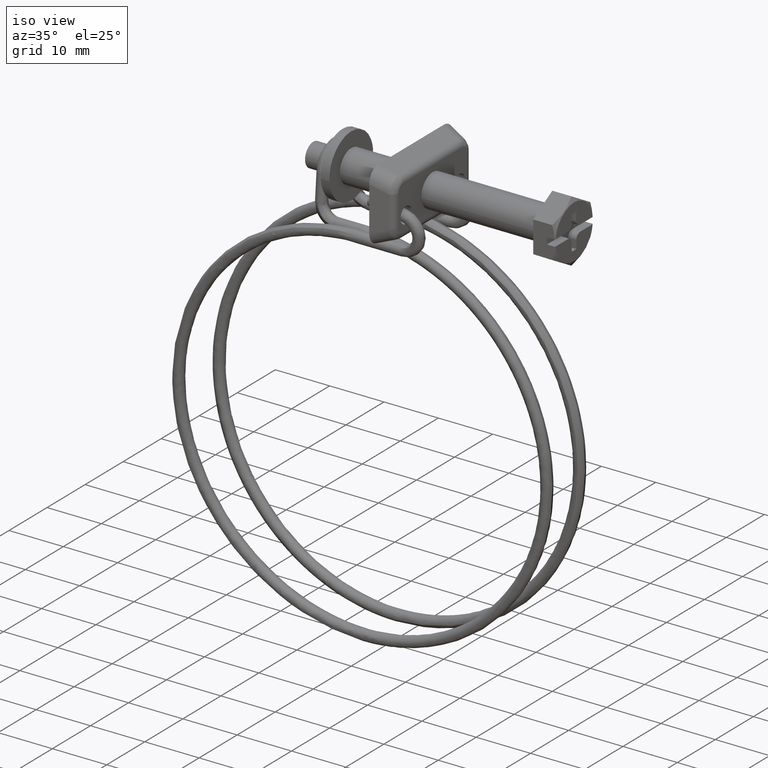
[diagram: clean part render]
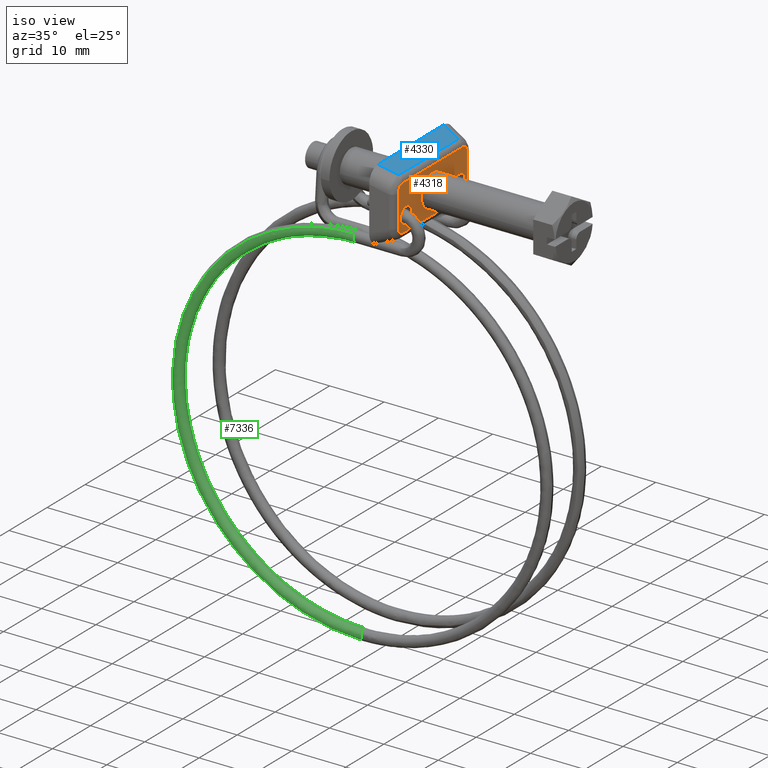
[diagram: same view with three faces highlighted in distinct colors, each labeled with its STEP entity id]
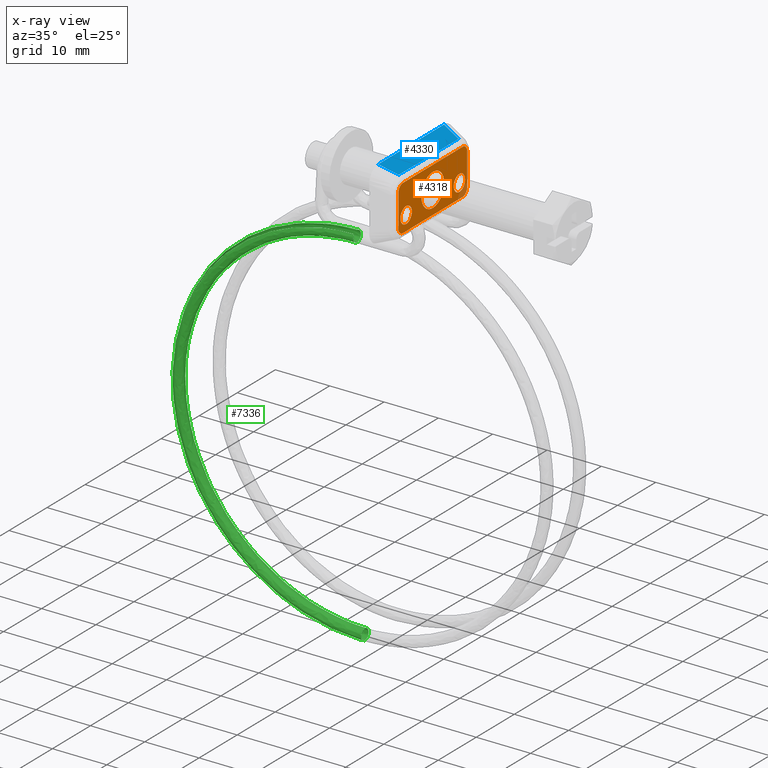
[diagram: x-ray of the same camera — body ghosted, the three highlighted faces saturated]
A machine part, iso view with three faces highlighted in distinct colors.
The next image is the same camera in x-ray (body ghosted, the three faces saturated) — at least one of them is partly hidden behind the body in this view.
Their STEP definitions:

[orange] entity #4318 — the highlighted face is a freeform B-spline surface patch.
#1712=CARTESIAN_POINT('',(-34.700000000000003,-2.979028579089248,0.354102703985006));
#1713=VERTEX_POINT('',#1712);
#1719=CARTESIAN_POINT('',(-34.700000000000003,0.0,-3.0));
#1720=VERTEX_POINT('',#1719);
#1721=CARTESIAN_POINT('',(-34.700000000000010,-2.979028579089249,0.354102703985006));
#1722=CARTESIAN_POINT('',(-34.700000000000010,-3.000000000000000,0.177672358970617));
#1723=CARTESIAN_POINT('',(-34.700000000000003,-3.0,0.0));
#1724=CARTESIAN_POINT('',(-34.700000000000003,-3.0,-3.0));
#1725=CARTESIAN_POINT('',(-34.700000000000003,0.0,-3.0));
#1733=(BOUNDED_CURVE()B_SPLINE_CURVE(2,(#1721,#1722,#1723,#1724,#1725),.UNSPECIFIED.,.F.,.U.)B_SPLINE_CURVE_WITH_KNOTS((3,2,3),(0.229562473513973,0.250000000000000,0.500000000000000),.UNSPECIFIED.)CURVE()GEOMETRIC_REPRESENTATION_ITEM()RATIONAL_B_SPLINE_CURVE((0.956026754184610,0.976055948331689,1.0,0.707106781186548,1.0))REPRESENTATION_ITEM(''));
#1734=EDGE_CURVE('',#1713,#1720,#1733,.T.);
#1736=CARTESIAN_POINT('',(-34.700000000000003,2.994404395260348,-0.183145618690442));
#1737=VERTEX_POINT('',#1736);
#1738=CARTESIAN_POINT('',(-34.700000000000003,0.0,-3.0));
#1739=CARTESIAN_POINT('',(-34.700000000000003,2.822118200554936,-3.0));
#1740=CARTESIAN_POINT('',(-34.700000000000010,2.994404395260348,-0.183145618690442));
#1748=(BOUNDED_CURVE()B_SPLINE_CURVE(2,(#1738,#1739,#1740),.UNSPECIFIED.,.F.,.U.)B_SPLINE_CURVE_WITH_KNOTS((3,3),(0.500000000000000,0.739332962232073),.UNSPECIFIED.)CURVE()GEOMETRIC_REPRESENTATION_ITEM()RATIONAL_B_SPLINE_CURVE((1.0,0.719603993294759,0.976072041651994))REPRESENTATION_ITEM(''));
#1749=EDGE_CURVE('',#1720,#1737,#1748,.T.);
#1823=CARTESIAN_POINT('',(-34.700000000000003,0.0,3.0));
#1824=VERTEX_POINT('',#1823);
#1825=CARTESIAN_POINT('',(-34.700000000000003,2.994404395260348,-0.183145618690442));
#1826=CARTESIAN_POINT('',(-34.699999999999996,3.0,-0.091658289981878));
#1827=CARTESIAN_POINT('',(-34.700000000000003,3.0,0.0));
#1828=CARTESIAN_POINT('',(-34.700000000000003,3.0,3.0));
#1829=CARTESIAN_POINT('',(-34.700000000000003,0.0,3.0));
#1837=(BOUNDED_CURVE()B_SPLINE_CURVE(2,(#1825,#1826,#1827,#1828,#1829),.UNSPECIFIED.,.F.,.U.)B_SPLINE_CURVE_WITH_KNOTS((3,2,3),(0.739332962232072,0.750000000000000,1.0),.UNSPECIFIED.)CURVE()GEOMETRIC_REPRESENTATION_ITEM()RATIONAL_B_SPLINE_CURVE((0.976072041651992,0.987502787891788,1.0,0.707106781186548,1.0))REPRESENTATION_ITEM(''));
#1838=EDGE_CURVE('',#1737,#1824,#1837,.T.);
#1840=CARTESIAN_POINT('',(-34.700000000000003,0.0,3.0));
#1841=CARTESIAN_POINT('',(-34.699999999999996,-2.664523577827566,3.0));
#1842=CARTESIAN_POINT('',(-34.700000000000003,-2.979028579089248,0.354102703985006));
#1850=(BOUNDED_CURVE()B_SPLINE_CURVE(2,(#1840,#1841,#1842),.UNSPECIFIED.,.F.,.U.)B_SPLINE_CURVE_WITH_KNOTS((3,3),(0.0,0.229562473513973),.UNSPECIFIED.)CURVE()GEOMETRIC_REPRESENTATION_ITEM()RATIONAL_B_SPLINE_CURVE((1.0,0.731050832854858,0.956026754184610))REPRESENTATION_ITEM(''));
#1851=EDGE_CURVE('',#1824,#1713,#1850,.T.);
#1902=CARTESIAN_POINT('',(-34.700000000000003,-5.728324125057110,-0.704487291686590));
#1903=VERTEX_POINT('',#1902);
#1909=CARTESIAN_POINT('',(-34.700000000000003,-7.000000000000110,1.140581E-013));
#1910=VERTEX_POINT('',#1909);
#1911=CARTESIAN_POINT('',(-34.700000000000003,-5.728324125057111,-0.704487291686590));
#1912=CARTESIAN_POINT('',(-34.700000000000003,-6.169024939182585,1.140581E-013));
#1913=CARTESIAN_POINT('',(-34.700000000000003,-7.000000000000110,1.140581E-013));
#1921=(BOUNDED_CURVE()B_SPLINE_CURVE(2,(#1911,#1912,#1913),.UNSPECIFIED.,.F.,.U.)B_SPLINE_CURVE_WITH_KNOTS((3,3),(0.840693054651779,1.0),.UNSPECIFIED.)CURVE()GEOMETRIC_REPRESENTATION_ITEM()RATIONAL_B_SPLINE_CURVE((0.864584606796940,0.813360303990483,1.0))REPRESENTATION_ITEM(''));
#1922=EDGE_CURVE('',#1903,#1910,#1921,.T.);
#1924=CARTESIAN_POINT('',(-34.700000000000003,-7.000000000000110,-2.999999999999886));
#1925=VERTEX_POINT('',#1924);
#1926=CARTESIAN_POINT('',(-34.700000000000003,-7.000000000000110,1.140581E-013));
#1927=CARTESIAN_POINT('',(-34.700000000000003,-8.500000000000110,1.140581E-013));
#1928=CARTESIAN_POINT('',(-34.700000000000003,-8.500000000000110,-1.499999999999886));
#1929=CARTESIAN_POINT('',(-34.700000000000003,-8.500000000000110,-2.999999999999886));
#1930=CARTESIAN_POINT('',(-34.700000000000003,-7.000000000000110,-2.999999999999886));
#1938=(BOUNDED_CURVE()B_SPLINE_CURVE(2,(#1926,#1927,#1928,#1929,#1930),.UNSPECIFIED.,.F.,.U.)B_SPLINE_CURVE_WITH_KNOTS((3,2,3),(0.0,0.250000000000000,0.500000000000000),.UNSPECIFIED.)CURVE()GEOMETRIC_REPRESENTATION_ITEM()RATIONAL_B_SPLINE_CURVE((1.0,0.707106781186548,1.0,0.707106781186548,1.0))REPRESENTATION_ITEM(''));
#1939=EDGE_CURVE('',#1910,#1925,#1938,.T.);
#1941=CARTESIAN_POINT('',(-34.700000000000003,-5.502797802386784,-1.591572809620562));
#1942=VERTEX_POINT('',#1941);
#1943=CARTESIAN_POINT('',(-34.700000000000003,-7.000000000000110,-2.999999999999886));
#1944=CARTESIAN_POINT('',(-34.700000000000010,-5.588940900242836,-2.999999999999886));
#1945=CARTESIAN_POINT('',(-34.700000000000003,-5.502797802386784,-1.591572809620561));
#1953=(BOUNDED_CURVE()B_SPLINE_CURVE(2,(#1943,#1944,#1945),.UNSPECIFIED.,.F.,.U.)B_SPLINE_CURVE_WITH_KNOTS((3,3),(0.500000000000000,0.739332962168581),.UNSPECIFIED.)CURVE()GEOMETRIC_REPRESENTATION_ITEM()RATIONAL_B_SPLINE_CURVE((1.0,0.719603993369144,0.976072041515920))REPRESENTATION_ITEM(''));
#1954=EDGE_CURVE('',#1925,#1942,#1953,.T.);
#2041=CARTESIAN_POINT('',(-34.700000000000003,-5.502797802386784,-1.591572809620562));
#2042=CARTESIAN_POINT('',(-34.700000000000003,-5.500000000000112,-1.545829145267052));
#2043=CARTESIAN_POINT('',(-34.700000000000003,-5.500000000000111,-1.499999999999886));
#2044=CARTESIAN_POINT('',(-34.700000000000003,-5.500000000000110,-1.069477414991303));
#2045=CARTESIAN_POINT('',(-34.699999999999996,-5.728324125057110,-0.704487291686590));
#2053=(BOUNDED_CURVE()B_SPLINE_CURVE(2,(#2041,#2042,#2043,#2044,#2045),.UNSPECIFIED.,.F.,.U.)B_SPLINE_CURVE_WITH_KNOTS((3,2,3),(0.739332962168582,0.750000000000000,0.840693054651778),.UNSPECIFIED.)CURVE()GEOMETRIC_REPRESENTATION_ITEM()RATIONAL_B_SPLINE_CURVE((0.976072041515921,0.987502787817404,1.0,0.893746477196066,0.864584606796941))REPRESENTATION_ITEM(''));
#2054=EDGE_CURVE('',#1942,#1903,#2053,.T.);
#2105=CARTESIAN_POINT('',(-34.700000000000003,5.910109113903810,-2.530600725986105));
#2106=VERTEX_POINT('',#2105);
#2112=CARTESIAN_POINT('',(-34.700000000000003,6.999999999999830,-2.999999999999886));
#2113=VERTEX_POINT('',#2112);
#2114=CARTESIAN_POINT('',(-34.700000000000003,5.910109113903810,-2.530600725986105));
#2115=CARTESIAN_POINT('',(-34.700000000000003,6.353973026105231,-2.999999999999886));
#2116=CARTESIAN_POINT('',(-34.700000000000003,6.999999999999830,-2.999999999999886));
#2124=(BOUNDED_CURVE()B_SPLINE_CURVE(2,(#2114,#2115,#2116),.UNSPECIFIED.,.F.,.U.)B_SPLINE_CURVE_WITH_KNOTS((3,3),(0.370781899629533,0.500000000000000),.UNSPECIFIED.)CURVE()GEOMETRIC_REPRESENTATION_ITEM()RATIONAL_B_SPLINE_CURVE((0.853720151064794,0.848611578614136,1.0))REPRESENTATION_ITEM(''));
#2125=EDGE_CURVE('',#2106,#2113,#2124,.T.);
#2127=CARTESIAN_POINT('',(-34.700000000000003,6.999999999999830,1.140581E-013));
#2128=VERTEX_POINT('',#2127);
#2129=CARTESIAN_POINT('',(-34.700000000000003,6.999999999999830,-2.999999999999886));
#2130=CARTESIAN_POINT('',(-34.700000000000003,8.499999999999831,-2.999999999999886));
#2131=CARTESIAN_POINT('',(-34.700000000000003,8.499999999999831,-1.499999999999886));
#2132=CARTESIAN_POINT('',(-34.700000000000003,8.499999999999831,1.140581E-013));
#2133=CARTESIAN_POINT('',(-34.700000000000003,6.999999999999830,1.140581E-013));
#2141=(BOUNDED_CURVE()B_SPLINE_CURVE(2,(#2129,#2130,#2131,#2132,#2133),.UNSPECIFIED.,.F.,.U.)B_SPLINE_CURVE_WITH_KNOTS((3,2,3),(0.500000000000000,0.750000000000000,1.0),.UNSPECIFIED.)CURVE()GEOMETRIC_REPRESENTATION_ITEM()RATIONAL_B_SPLINE_CURVE((1.0,0.707106781186548,1.0,0.707106781186548,1.0))REPRESENTATION_ITEM(''));
#2142=EDGE_CURVE('',#2113,#2128,#2141,.T.);
#2144=CARTESIAN_POINT('',(-34.700000000000003,5.502797802386503,-1.408427190379211));
#2145=VERTEX_POINT('',#2144);
#2146=CARTESIAN_POINT('',(-34.700000000000003,6.999999999999830,1.140581E-013));
#2147=CARTESIAN_POINT('',(-34.699999999999996,5.588940900242551,1.140581E-013));
#2148=CARTESIAN_POINT('',(-34.700000000000003,5.502797802386503,-1.408427190379211));
#2156=(BOUNDED_CURVE()B_SPLINE_CURVE(2,(#2146,#2147,#2148),.UNSPECIFIED.,.F.,.U.)B_SPLINE_CURVE_WITH_KNOTS((3,3),(0.0,0.239332962168582),.UNSPECIFIED.)CURVE()GEOMETRIC_REPRESENTATION_ITEM()RATIONAL_B_SPLINE_CURVE((1.0,0.719603993369143,0.976072041515921))REPRESENTATION_ITEM(''));
#2157=EDGE_CURVE('',#2128,#2145,#2156,.T.);
#2244=CARTESIAN_POINT('',(-34.700000000000003,5.502797802386503,-1.408427190379211));
#2245=CARTESIAN_POINT('',(-34.700000000000003,5.499999999999830,-1.454170854732720));
#2246=CARTESIAN_POINT('',(-34.700000000000003,5.499999999999830,-1.499999999999886));
#2247=CARTESIAN_POINT('',(-34.700000000000003,5.499999999999830,-2.096898154002779));
#2248=CARTESIAN_POINT('',(-34.700000000000003,5.910109113903810,-2.530600725986105));
#2256=(BOUNDED_CURVE()B_SPLINE_CURVE(2,(#2244,#2245,#2246,#2247,#2248),.UNSPECIFIED.,.F.,.U.)B_SPLINE_CURVE_WITH_KNOTS((3,2,3),(0.239332962168582,0.250000000000000,0.370781899629533),.UNSPECIFIED.)CURVE()GEOMETRIC_REPRESENTATION_ITEM()RATIONAL_B_SPLINE_CURVE((0.976072041515921,0.987502787817404,1.0,0.858495202572412,0.853720151064794))REPRESENTATION_ITEM(''));
#2257=EDGE_CURVE('',#2145,#2106,#2256,.T.);
#3251=CARTESIAN_POINT('',(-34.700000000000003,7.837173833659421,-4.168399938202366));
#3252=VERTEX_POINT('',#3251);
#3283=CARTESIAN_POINT('',(-34.700000000000003,9.063068073994790,-2.898235503023255));
#3284=VERTEX_POINT('',#3283);
#3298=CARTESIAN_POINT('',(-34.700000000000003,7.837173833659350,-4.168399938202257));
#3299=CARTESIAN_POINT('',(-34.700000000000003,9.063068073994772,-4.168399938202319));
#3300=CARTESIAN_POINT('',(-34.700000000000003,9.063068073994794,-2.898235503023259));
#3308=(BOUNDED_CURVE()B_SPLINE_CURVE(2,(#3298,#3299,#3300),.UNSPECIFIED.,.F.,.U.)CURVE()GEOMETRIC_REPRESENTATION_ITEM()QUASI_UNIFORM_CURVE()RATIONAL_B_SPLINE_CURVE((1.0,0.736600277350782,1.0))REPRESENTATION_ITEM(''));
#3309=EDGE_CURVE('',#3252,#3284,#3308,.T.);
#3330=CARTESIAN_POINT('',(-34.700000000000003,9.063068073994790,2.898234503023515));
#3331=VERTEX_POINT('',#3330);
#3345=CARTESIAN_POINT('',(-34.700000000000003,9.063068073994790,-2.898235503023255));
#3346=CARTESIAN_POINT('',(-34.700000000000003,9.063068073994790,2.898234503023515));
#3347=QUASI_UNIFORM_CURVE('',1,(#3345,#3346),.UNSPECIFIED.,.F.,.U.);
#3348=EDGE_CURVE('',#3284,#3331,#3347,.T.);
#3373=CARTESIAN_POINT('',(-34.700000000000003,-7.837173833659261,-4.168399938202345));
#3374=VERTEX_POINT('',#3373);
#3396=CARTESIAN_POINT('',(-34.700000000000003,-7.837173833659261,-4.168399938202345));
#3397=CARTESIAN_POINT('',(-34.700000000000003,7.837173833659421,-4.168399938202366));
#3398=QUASI_UNIFORM_CURVE('',1,(#3396,#3397),.UNSPECIFIED.,.F.,.U.);
#3399=EDGE_CURVE('',#3374,#3252,#3398,.T.);
#3444=CARTESIAN_POINT('',(-34.700000000000003,7.837173833659399,4.168398938202520));
#3445=VERTEX_POINT('',#3444);
#3459=CARTESIAN_POINT('',(-34.700000000000003,9.063068073994794,2.898234503023514));
#3460=CARTESIAN_POINT('',(-34.700000000000003,9.063068073994794,4.168398938202528));
#3461=CARTESIAN_POINT('',(-34.700000000000003,7.837173833659408,4.168398938202532));
#3469=(BOUNDED_CURVE()B_SPLINE_CURVE(2,(#3459,#3460,#3461),.UNSPECIFIED.,.F.,.U.)CURVE()GEOMETRIC_REPRESENTATION_ITEM()QUASI_UNIFORM_CURVE()RATIONAL_B_SPLINE_CURVE((1.0,0.736600277350791,1.0))REPRESENTATION_ITEM(''));
#3470=EDGE_CURVE('',#3331,#3445,#3469,.T.);
#3527=CARTESIAN_POINT('',(-34.700000000000003,-9.063068073994819,-2.898235503023300));
#3528=VERTEX_POINT('',#3527);
#3558=CARTESIAN_POINT('',(-34.700000000000003,-9.063068073994884,-2.898235503023257));
#3559=CARTESIAN_POINT('',(-34.700000000000003,-9.063068073994952,-4.168399938202581));
#3560=CARTESIAN_POINT('',(-34.700000000000003,-7.837173833659266,-4.168399938202352));
#3568=(BOUNDED_CURVE()B_SPLINE_CURVE(2,(#3558,#3559,#3560),.UNSPECIFIED.,.F.,.U.)CURVE()GEOMETRIC_REPRESENTATION_ITEM()QUASI_UNIFORM_CURVE()RATIONAL_B_SPLINE_CURVE((1.0,0.736600277350715,1.0))REPRESENTATION_ITEM(''));
#3569=EDGE_CURVE('',#3528,#3374,#3568,.T.);
#3590=CARTESIAN_POINT('',(-34.700000000000003,-7.837173833659450,4.168398938202480));
#3591=VERTEX_POINT('',#3590);
#3605=CARTESIAN_POINT('',(-34.700000000000003,7.837173833659399,4.168398938202520));
#3606=CARTESIAN_POINT('',(-34.700000000000003,-7.837173833659450,4.168398938202480));
#3607=QUASI_UNIFORM_CURVE('',1,(#3605,#3606),.UNSPECIFIED.,.F.,.U.);
#3608=EDGE_CURVE('',#3445,#3591,#3607,.T.);
#3633=CARTESIAN_POINT('',(-34.700000000000003,-9.063068073994838,2.898234503023610));
#3634=VERTEX_POINT('',#3633);
#3656=CARTESIAN_POINT('',(-34.700000000000003,-9.063068073994838,2.898234503023610));
#3657=CARTESIAN_POINT('',(-34.700000000000003,-9.063068073994819,-2.898235503023300));
#3658=QUASI_UNIFORM_CURVE('',1,(#3656,#3657),.UNSPECIFIED.,.F.,.U.);
#3659=EDGE_CURVE('',#3634,#3528,#3658,.T.);
#3717=CARTESIAN_POINT('',(-34.700000000000003,-7.837173833659446,4.168398938202476));
#3718=CARTESIAN_POINT('',(-34.700000000000003,-9.063068073994696,4.168398938202474));
#3719=CARTESIAN_POINT('',(-34.700000000000003,-9.063068073994831,2.898234503023615));
#3727=(BOUNDED_CURVE()B_SPLINE_CURVE(2,(#3717,#3718,#3719),.UNSPECIFIED.,.F.,.U.)CURVE()GEOMETRIC_REPRESENTATION_ITEM()QUASI_UNIFORM_CURVE()RATIONAL_B_SPLINE_CURVE((1.0,0.736600277350829,1.0))REPRESENTATION_ITEM(''));
#3728=EDGE_CURVE('',#3591,#3634,#3727,.T.);
#4285=CARTESIAN_POINT('',(-34.700000000000003,-9.968468879765345,4.584821917875805));
#4286=CARTESIAN_POINT('',(-34.700000000000003,-9.968468879765345,-4.584822619728491));
#4287=CARTESIAN_POINT('',(-34.700000000000003,9.968469041825584,4.584821917875805));
#4288=CARTESIAN_POINT('',(-34.700000000000003,9.968469041825584,-4.584822619728491));
#4289=B_SPLINE_SURFACE_WITH_KNOTS('',1,1,((#4285,#4287),(#4286,#4288)),.UNSPECIFIED.,.F.,.F.,.U.,(2,2),(2,2),(0.0,9.169644537604295),(0.0,19.936937921590928),.UNSPECIFIED.);
#4290=ORIENTED_EDGE('',*,*,#3399,.T.);
#4291=ORIENTED_EDGE('',*,*,#3309,.T.);
#4292=ORIENTED_EDGE('',*,*,#3348,.T.);
#4293=ORIENTED_EDGE('',*,*,#3470,.T.);
#4294=ORIENTED_EDGE('',*,*,#3608,.T.);
#4295=ORIENTED_EDGE('',*,*,#3728,.T.);
#4296=ORIENTED_EDGE('',*,*,#3659,.T.);
#4297=ORIENTED_EDGE('',*,*,#3569,.T.);
#4298=EDGE_LOOP('',(#4290,#4291,#4292,#4293,#4294,#4295,#4296,#4297));
#4299=FACE_OUTER_BOUND('',#4298,.T.);
#4300=ORIENTED_EDGE('',*,*,#1939,.F.);
#4301=ORIENTED_EDGE('',*,*,#1922,.F.);
#4302=ORIENTED_EDGE('',*,*,#2054,.F.);
#4303=ORIENTED_EDGE('',*,*,#1954,.F.);
#4304=EDGE_LOOP('',(#4300,#4301,#4302,#4303));
#4305=FACE_BOUND('',#4304,.T.);
#4306=ORIENTED_EDGE('',*,*,#2142,.F.);
#4307=ORIENTED_EDGE('',*,*,#2125,.F.);
#4308=ORIENTED_EDGE('',*,*,#2257,.F.);
#4309=ORIENTED_EDGE('',*,*,#2157,.F.);
#4310=EDGE_LOOP('',(#4306,#4307,#4308,#4309));
#4311=FACE_BOUND('',#4310,.T.);
#4312=ORIENTED_EDGE('',*,*,#1749,.F.);
#4313=ORIENTED_EDGE('',*,*,#1734,.F.);
#4314=ORIENTED_EDGE('',*,*,#1851,.F.);
#4315=ORIENTED_EDGE('',*,*,#1838,.F.);
#4316=EDGE_LOOP('',(#4312,#4313,#4314,#4315));
#4317=FACE_BOUND('',#4316,.T.);
#4318=ADVANCED_FACE('',(#4299,#4305,#4311,#4317),#4289,.T.);

[blue] entity #4330 — the highlighted face is a freeform B-spline surface patch.
#3442=CARTESIAN_POINT('',(-35.478652022991000,7.837173833659399,5.291994008621761));
#3443=VERTEX_POINT('',#3442);
#3588=CARTESIAN_POINT('',(-35.478652022990950,-7.837173833659441,5.291994008621720));
#3589=VERTEX_POINT('',#3588);
#3611=CARTESIAN_POINT('',(-35.478652022990950,-7.837173833659441,5.291994008621720));
#3612=CARTESIAN_POINT('',(-35.478652022991000,7.837173833659399,5.291994008621761));
#3613=QUASI_UNIFORM_CURVE('',1,(#3611,#3612),.UNSPECIFIED.,.F.,.U.);
#3614=EDGE_CURVE('',#3589,#3443,#3613,.T.);
#3955=CARTESIAN_POINT('',(-38.700000000000003,-8.642511158470031,6.500000000000110));
#3956=VERTEX_POINT('',#3955);
#3957=CARTESIAN_POINT('',(-38.700000000000003,-8.642511158470031,6.500000000000110));
#3958=CARTESIAN_POINT('',(-35.478652022990950,-7.837173833659441,5.291994008621720));
#3959=QUASI_UNIFORM_CURVE('',1,(#3957,#3958),.UNSPECIFIED.,.F.,.U.);
#3960=EDGE_CURVE('',#3956,#3589,#3959,.T.);
#4082=CARTESIAN_POINT('',(-38.700000000000003,8.642511158470031,6.500000000000110));
#4083=VERTEX_POINT('',#4082);
#4084=CARTESIAN_POINT('',(-35.478652022991000,7.837173833659399,5.291994008621761));
#4085=CARTESIAN_POINT('',(-38.700000000000003,8.642511158470031,6.500000000000110));
#4086=QUASI_UNIFORM_CURVE('',1,(#4084,#4085),.UNSPECIFIED.,.F.,.U.);
#4087=EDGE_CURVE('',#3443,#4083,#4086,.T.);
#4244=CARTESIAN_POINT('',(-38.700000000000003,-8.642511158470031,6.500000000000110));
#4245=CARTESIAN_POINT('',(-38.700000000000003,8.642511158470031,6.500000000000110));
#4246=QUASI_UNIFORM_CURVE('',1,(#4244,#4245),.UNSPECIFIED.,.F.,.U.);
#4247=EDGE_CURVE('',#3956,#4083,#4246,.T.);
#4319=CARTESIAN_POINT('',(-38.860907350114417,-9.505898314218301,6.560339231317746));
#4320=CARTESIAN_POINT('',(-35.317746528101807,-9.505898314218301,5.231654473013151));
#4321=CARTESIAN_POINT('',(-38.860907350114417,9.505898468758446,6.560339231317746));
#4322=CARTESIAN_POINT('',(-35.317746528101807,9.505898468758446,5.231654473013151));
#4323=B_SPLINE_SURFACE_WITH_KNOTS('',1,1,((#4319,#4321),(#4320,#4322)),.UNSPECIFIED.,.F.,.F.,.U.,(2,2),(2,2),(0.0,3.784097223591911),(0.0,19.011796782976749),.UNSPECIFIED.);
#4324=ORIENTED_EDGE('',*,*,#3960,.T.);
#4325=ORIENTED_EDGE('',*,*,#3614,.T.);
#4326=ORIENTED_EDGE('',*,*,#4087,.T.);
#4327=ORIENTED_EDGE('',*,*,#4247,.F.);
#4328=EDGE_LOOP('',(#4324,#4325,#4326,#4327));
#4329=FACE_OUTER_BOUND('',#4328,.T.);
#4330=ADVANCED_FACE('',(#4329),#4323,.T.);

[green] entity #7336 — the highlighted face is a freeform B-spline surface patch.
#4592=CARTESIAN_POINT('',(-31.499999999998799,-6.015277306654103,-6.894924390057638));
#4593=VERTEX_POINT('',#4592);
#4599=CARTESIAN_POINT('',(-31.499999999998799,-6.369948017666440,-6.851799381403104));
#4600=VERTEX_POINT('',#4599);
#4601=CARTESIAN_POINT('',(-31.499999999998799,-6.015277306654103,-6.894924390057638));
#4602=CARTESIAN_POINT('',(-31.499999999998799,-6.129718413403300,-6.859667873983947));
#4603=CARTESIAN_POINT('',(-31.499999999998799,-6.250341688216125,-6.844467170618224));
#4604=CARTESIAN_POINT('',(-31.499999999998799,-6.369948017666440,-6.851799381403104));
#4605=B_SPLINE_CURVE_WITH_KNOTS('',3,(#4601,#4602,#4603,#4604),.UNSPECIFIED.,.F.,.U.,(4,4),(0.942811831421923,1.0),.UNSPECIFIED.);
#4606=EDGE_CURVE('',#4593,#4600,#4605,.T.);
#4608=CARTESIAN_POINT('',(-31.499999999998799,-7.078674786449659,-7.210393451102942));
#4609=VERTEX_POINT('',#4608);
#4619=CARTESIAN_POINT('',(-31.499999999998799,-6.250055922340059,-8.848202618597000));
#4620=VERTEX_POINT('',#4619);
#4621=CARTESIAN_POINT('',(-31.499999999998799,-7.078674786449659,-7.210393451102942));
#4622=CARTESIAN_POINT('',(-31.499999999998799,-7.239101972614058,-7.403726215757891));
#4623=CARTESIAN_POINT('',(-31.499999999998799,-7.323269643102371,-7.659072126360091));
#4624=CARTESIAN_POINT('',(-31.499999999998799,-7.292509750020990,-8.171275620312029));
#4625=CARTESIAN_POINT('',(-31.499999999998799,-7.169333272216529,-8.424534404153750));
#4626=CARTESIAN_POINT('',(-31.499999999998799,-6.777564421176599,-8.771914376464871));
#4627=CARTESIAN_POINT('',(-31.499999999998799,-6.511384494988860,-8.863896457176201));
#4628=CARTESIAN_POINT('',(-31.499999999998799,-6.250055922340059,-8.848202618597000));
#4629=B_SPLINE_CURVE_WITH_KNOTS('',3,(#4621,#4622,#4623,#4624,#4625,#4626,#4627,#4628),.UNSPECIFIED.,.F.,.U.,(4,2,2,4),(0.130000243199440,0.250000000000000,0.375000000000000,0.500000000000000),.UNSPECIFIED.);
#4630=EDGE_CURVE('',#4609,#4620,#4629,.T.);
#4632=CARTESIAN_POINT('',(-31.499999999998799,-5.310041507166210,-7.851106258453761));
#4633=VERTEX_POINT('',#4632);
#4634=CARTESIAN_POINT('',(-31.499999999998799,-6.250055922340059,-8.848202618597000));
#4635=CARTESIAN_POINT('',(-31.499999999998799,-5.988721933373697,-8.832508798743719));
#4636=CARTESIAN_POINT('',(-31.499999999998799,-5.735455668905237,-8.709332346802128));
#4637=CARTESIAN_POINT('',(-31.499999999998799,-5.401575458326748,-8.332804445776580));
#4638=CARTESIAN_POINT('',(-31.499999999998799,-5.310880665141885,-8.092378658964302));
#4639=CARTESIAN_POINT('',(-31.499999999998799,-5.310041507166210,-7.851106258453761));
#4640=B_SPLINE_CURVE_WITH_KNOTS('',3,(#4634,#4635,#4636,#4637,#4638,#4639),.UNSPECIFIED.,.F.,.U.,(4,2,4),(0.500000000000000,0.625000000000000,0.740274302961616),.UNSPECIFIED.);
#4641=EDGE_CURVE('',#4620,#4633,#4640,.T.);
#4716=CARTESIAN_POINT('',(-31.499999999998799,-5.310041507166210,-7.851106258453761));
#4717=CARTESIAN_POINT('',(-31.499999999998799,-5.309969699984012,-7.830743746347066));
#4718=CARTESIAN_POINT('',(-31.499999999998799,-5.310537466434142,-7.810375058326174));
#4719=CARTESIAN_POINT('',(-31.499999999998799,-5.327431664099590,-7.528621678977583));
#4720=CARTESIAN_POINT('',(-31.499999999998799,-5.450583911179574,-7.275255265983924));
#4721=CARTESIAN_POINT('',(-31.499999999998799,-5.752700027735527,-7.007185871824511));
#4722=CARTESIAN_POINT('',(-31.499999999998799,-5.879642740693932,-6.936955408940641));
#4723=CARTESIAN_POINT('',(-31.499999999998799,-6.015277306654103,-6.894924390057638));
#4724=B_SPLINE_CURVE_WITH_KNOTS('',3,(#4716,#4717,#4718,#4719,#4720,#4721,#4722,#4723),.UNSPECIFIED.,.F.,.U.,(4,2,2,4),(0.740274302961616,0.750000000000000,0.875000000000000,0.942811831421923),.UNSPECIFIED.);
#4725=EDGE_CURVE('',#4633,#4593,#4724,.T.);
#6112=CARTESIAN_POINT('',(-31.500000000001211,-4.300002000000002,-73.850001000000091));
#6113=VERTEX_POINT('',#6112);
#6114=CARTESIAN_POINT('',(-31.499999998038490,-3.302485879301839,-74.780271448700688));
#6115=VERTEX_POINT('',#6114);
#6116=CARTESIAN_POINT('',(-31.500000000001211,-4.300002000000002,-73.850001000000091));
#6117=CARTESIAN_POINT('',(-31.499999999725699,-4.038195655369905,-73.850000495567741));
#6118=CARTESIAN_POINT('',(-31.499999999346109,-3.777998799463927,-73.957772896964102));
#6119=CARTESIAN_POINT('',(-31.499999998626581,-3.424196120206559,-74.311556089768061));
#6120=CARTESIAN_POINT('',(-31.499999998289951,-3.319730346469261,-74.542534409383535));
#6121=CARTESIAN_POINT('',(-31.499999998038490,-3.302485879301839,-74.780271448700688));
#6122=B_SPLINE_CURVE_WITH_KNOTS('',3,(#6116,#6117,#6118,#6119,#6120,#6121),.UNSPECIFIED.,.F.,.U.,(4,2,4),(0.500000000000000,0.625000000000000,0.738888475216907),.UNSPECIFIED.);
#6123=EDGE_CURVE('',#6113,#6115,#6122,.T.);
#6125=CARTESIAN_POINT('',(-31.500000000001240,-5.028950504936020,-75.534537187868466));
#6126=VERTEX_POINT('',#6125);
#6127=CARTESIAN_POINT('',(-31.500000000001240,-5.028950504936020,-75.534537187868466));
#6128=CARTESIAN_POINT('',(-31.500000000001268,-5.200678716957211,-75.351169085010667));
#6129=CARTESIAN_POINT('',(-31.500000000001268,-5.300001999999999,-75.101327902931885));
#6130=CARTESIAN_POINT('',(-31.500000000001240,-5.300002000000001,-74.588201612200947));
#6131=CARTESIAN_POINT('',(-31.500000000001229,-5.192228903609815,-74.328014341236823));
#6132=CARTESIAN_POINT('',(-31.500000000001219,-4.821988658763284,-73.957774096390295));
#6133=CARTESIAN_POINT('',(-31.500000000001211,-4.561801387799152,-73.850001000000091));
#6134=CARTESIAN_POINT('',(-31.500000000001211,-4.300002000000002,-73.850001000000091));
#6135=B_SPLINE_CURVE_WITH_KNOTS('',3,(#6127,#6128,#6129,#6130,#6131,#6132,#6133,#6134),.UNSPECIFIED.,.F.,.U.,(4,2,2,4),(0.130000243199282,0.250000000000000,0.375000000000000,0.500000000000000),.UNSPECIFIED.);
#6136=EDGE_CURVE('',#6126,#6113,#6135,.T.);
#6138=CARTESIAN_POINT('',(-31.500000000001240,-4.300002000000005,-75.850001000000105));
#6139=VERTEX_POINT('',#6138);
#6149=CARTESIAN_POINT('',(-31.499999999980400,-4.287435984471268,-75.849920191923019));
#6150=VERTEX_POINT('',#6149);
#6151=CARTESIAN_POINT('',(-31.499999999980400,-4.287435984471268,-75.849920191923019));
#6152=CARTESIAN_POINT('',(-31.499999999987349,-4.291624042898494,-75.849974639911892));
#6153=CARTESIAN_POINT('',(-31.499999999994301,-4.295812815059978,-75.850001617475982));
#6154=CARTESIAN_POINT('',(-31.500000000001240,-4.300002000000005,-75.850001000000105));
#6155=B_SPLINE_CURVE_WITH_KNOTS('',3,(#6151,#6152,#6153,#6154),.UNSPECIFIED.,.F.,.U.,(4,4),(0.997999815404201,1.0),.UNSPECIFIED.);
#6156=EDGE_CURVE('',#6150,#6139,#6155,.T.);
#6239=CARTESIAN_POINT('',(-31.499999998038490,-3.302485879301839,-74.780271448700688));
#6240=CARTESIAN_POINT('',(-31.499999998059760,-3.300804585556210,-74.803466358526052));
#6241=CARTESIAN_POINT('',(-31.499999998081840,-3.299953544916078,-74.826725604875591));
#6242=CARTESIAN_POINT('',(-31.499999998361929,-3.299960689532824,-75.111797701216886));
#6243=CARTESIAN_POINT('',(-31.499999998715062,-3.407742793958837,-75.371985962495657));
#6244=CARTESIAN_POINT('',(-31.499999999408161,-3.775038524061022,-75.739265955752160));
#6245=CARTESIAN_POINT('',(-31.499999999744109,-4.029889019309713,-75.846533327677591));
#6246=CARTESIAN_POINT('',(-31.499999999980400,-4.287435984471268,-75.849920191923019));
#6247=B_SPLINE_CURVE_WITH_KNOTS('',3,(#6239,#6240,#6241,#6242,#6243,#6244,#6245,#6246),.UNSPECIFIED.,.F.,.U.,(4,2,2,4),(0.738888475216907,0.750000000000000,0.875000000000000,0.997999815404200),.UNSPECIFIED.);
#6248=EDGE_CURVE('',#6115,#6150,#6247,.T.);
#6995=CARTESIAN_POINT('',(-31.500000000001201,-5.028949982883884,-75.534537745304903));
#6996=CARTESIAN_POINT('',(-31.500000000001201,-5.200678314366810,-75.351170097699324));
#6997=CARTESIAN_POINT('',(-31.500000000001201,-5.300002000000000,-75.101328412287330));
#6998=CARTESIAN_POINT('',(-31.500000000001201,-5.300002000000000,-74.588201612201004));
#6999=CARTESIAN_POINT('',(-31.500000000001201,-5.192228903609820,-74.328014341236795));
#7000=CARTESIAN_POINT('',(-31.500000000001201,-4.821988658763289,-73.957774096390295));
#7001=CARTESIAN_POINT('',(-31.500000000001201,-4.561801387799160,-73.850001000000091));
#7002=CARTESIAN_POINT('',(-31.500000000001201,-4.038202612200860,-73.850001000000091));
#7003=CARTESIAN_POINT('',(-31.500000000001201,-3.778015341236725,-73.957774096390295));
#7004=CARTESIAN_POINT('',(-31.500000000001201,-3.407775096390195,-74.328014341236795));
#7005=CARTESIAN_POINT('',(-31.500000000001201,-3.300002000000000,-74.588201612201004));
#7006=CARTESIAN_POINT('',(-31.500000000001201,-3.300002000000000,-75.111800387799292));
#7007=CARTESIAN_POINT('',(-31.500000000001201,-3.407775096390195,-75.371987658763388));
#7008=CARTESIAN_POINT('',(-31.500000000001201,-3.778015341236725,-75.742227903609901));
#7009=CARTESIAN_POINT('',(-31.500000000001201,-4.038202612200860,-75.850001000000091));
#7010=CARTESIAN_POINT('',(-31.500000000001201,-4.300002000000009,-75.850001000000091));
#7011=CARTESIAN_POINT('',(-35.973005278150708,-5.028950991142065,-75.534537766680515));
#7012=CARTESIAN_POINT('',(-35.948321829880527,-5.200679317023192,-75.351170124111690));
#7013=CARTESIAN_POINT('',(-35.915219132650662,-5.300002995200154,-75.101328441614243));
#7014=CARTESIAN_POINT('',(-35.848033833522749,-5.300002980159810,-74.588201641527704));
#7015=CARTESIAN_POINT('',(-35.814390031246703,-5.192229876284429,-74.328014367400897));
#7016=CARTESIAN_POINT('',(-35.767367617769551,-4.821989621074800,-73.957774111695798));
#7017=CARTESIAN_POINT('',(-35.754278562706048,-4.561802347294540,-73.850001007699390));
#7018=CARTESIAN_POINT('',(-35.756335255481197,-4.038203572388540,-73.850000992329399));
#7019=CARTESIAN_POINT('',(-35.771468338563899,-3.778016304929490,-73.957774081107900));
#7020=CARTESIAN_POINT('',(-35.821399354897103,-3.407776071425540,-74.328014315082001));
#7021=CARTESIAN_POINT('',(-35.855889821279852,-3.300002982805240,-74.588201582878213));
#7022=CARTESIAN_POINT('',(-35.924446248961402,-3.300002998153385,-75.111800358476700));
#7023=CARTESIAN_POINT('',(-35.958090051226002,-3.407776102027685,-75.371987632608892));
#7024=CARTESIAN_POINT('',(-36.005112464714550,-3.778016357238065,-75.742227888327719));
#7025=CARTESIAN_POINT('',(-36.018201519778103,-4.038203631015435,-75.850000992329512));
#7026=CARTESIAN_POINT('',(-36.017173173384819,-4.300003018468487,-75.850001000014501));
#7027=CARTESIAN_POINT('',(-40.442629881534202,-5.055629407646570,-74.645223573354514));
#7028=CARTESIAN_POINT('',(-40.393282102603543,-5.227210501698679,-74.466763840208017));
#7029=CARTESIAN_POINT('',(-40.327102346527262,-5.326336728855297,-74.223504104226336));
#7030=CARTESIAN_POINT('',(-40.192783784084803,-5.325935966739770,-73.723736041477295));
#7031=CARTESIAN_POINT('',(-40.125522237079551,-5.217962184163480,-73.470238310080703));
#7032=CARTESIAN_POINT('',(-40.031513829514203,-4.847441449355900,-73.109347730706105));
#7033=CARTESIAN_POINT('',(-40.005345857026263,-4.587176101827220,-73.004177186522710));
#7034=CARTESIAN_POINT('',(-40.009457649706512,-4.063589594456735,-73.003768245582805));
#7035=CARTESIAN_POINT('',(-40.039712095124543,-3.803492592740725,-73.108532367008209));
#7036=CARTESIAN_POINT('',(-40.139535455610996,-3.433550187749276,-73.468844616597096));
#7037=CARTESIAN_POINT('',(-40.208489675153551,-3.325982827916725,-73.722174002173404));
#7038=CARTESIAN_POINT('',(-40.345549432747902,-3.326391768849985,-74.232141413141804));
#7039=CARTESIAN_POINT('',(-40.412810979768352,-3.434365551424375,-74.485639144477602));
#7040=CARTESIAN_POINT('',(-40.506819387318487,-3.804886286231950,-74.846529723882597));
#7041=CARTESIAN_POINT('',(-40.532987359806448,-4.065151633758730,-74.951700268096502));
#7042=CARTESIAN_POINT('',(-40.530931463473948,-4.326944887443970,-74.951904738566441));
#7043=CARTESIAN_POINT('',(-48.705730897024360,-5.158316594039482,-71.222317309228771));
#7044=CARTESIAN_POINT('',(-48.610793773201408,-5.329331140306540,-71.062742502481925));
#7045=CARTESIAN_POINT('',(-48.483474655072669,-5.427697576545862,-70.844809130562652));
#7046=CARTESIAN_POINT('',(-48.225067523658012,-5.425754741307189,-70.396443506111694));
#7047=CARTESIAN_POINT('',(-48.095667215148403,-5.317008748087100,-70.168686130030608));
#7048=CARTESIAN_POINT('',(-47.914810284592697,-4.945408729553829,-69.843771675454192));
#7049=CARTESIAN_POINT('',(-47.864467349245693,-4.684842954991621,-69.748615365838688));
#7050=CARTESIAN_POINT('',(-47.872377771504112,-4.161303653940585,-69.746632880907001));
#7051=CARTESIAN_POINT('',(-47.930582418071197,-3.901553994886030,-69.839818913409303));
#7052=CARTESIAN_POINT('',(-48.122626375121797,-3.532757633437720,-70.161929710870396));
#7053=CARTESIAN_POINT('',(-48.255283111014798,-3.425981917345065,-70.388870971451396));
#7054=CARTESIAN_POINT('',(-48.518963857356297,-3.427964402283440,-70.846386914768601));
#7055=CARTESIAN_POINT('',(-48.648364165850602,-3.536710395505425,-71.074144290910596));
#7056=CARTESIAN_POINT('',(-48.829221096421598,-3.908310414038685,-71.399058745456600));
#7057=CARTESIAN_POINT('',(-48.879564031768602,-4.168876188602805,-71.494215055041693));
#7058=CARTESIAN_POINT('',(-48.875608820631797,-4.430645839128323,-71.495206297507551));
#7059=CARTESIAN_POINT('',(-52.495228591292772,-5.234283829823305,-68.690076078539263));
#7060=CARTESIAN_POINT('',(-52.379388699837989,-5.404879302765293,-68.544470382880775));
#7061=CARTESIAN_POINT('',(-52.224037113111422,-5.502683724440917,-68.345270830174371));
#7062=CARTESIAN_POINT('',(-51.908735228589613,-5.499600223337270,-67.934927401716592));
#7063=CARTESIAN_POINT('',(-51.750844225709102,-5.390283028718730,-67.726210072475496));
#7064=CARTESIAN_POINT('',(-51.530167146347097,-5.017884667946860,-67.427907026171994));
#7065=CARTESIAN_POINT('',(-51.468739962452197,-4.757096668610060,-67.340158209302501));
#7066=CARTESIAN_POINT('',(-51.478392060793396,-4.233592285899340,-67.337011779612595));
#7067=CARTESIAN_POINT('',(-51.549411907081200,-3.974099554944604,-67.421633541954989));
#7068=CARTESIAN_POINT('',(-51.783739114832301,-3.606150917726075,-67.715486864754610));
#7069=CARTESIAN_POINT('',(-51.945603528550599,-3.499960777617495,-67.922908925604091));
#7070=CARTESIAN_POINT('',(-52.267340145440102,-3.503107207313200,-68.341626709714205));
#7071=CARTESIAN_POINT('',(-52.425231148320592,-3.612424401933635,-68.550344038955387));
#7072=CARTESIAN_POINT('',(-52.645908227682597,-3.984822762701700,-68.848647085289301));
#7073=CARTESIAN_POINT('',(-52.707335411547000,-4.245610762042305,-68.936395902128297));
#7074=CARTESIAN_POINT('',(-52.702509362391602,-4.507362953398618,-68.937969116973306));
#7075=CARTESIAN_POINT('',(-58.819111408490024,-5.424010065724406,-62.365868120919991));
#7076=CARTESIAN_POINT('',(-58.668397587276417,-5.593559266996959,-62.255138148058833));
#7077=CARTESIAN_POINT('',(-58.466276962204340,-5.689960545404341,-62.102710038263822));
#7078=CARTESIAN_POINT('',(-58.056052545914099,-5.684029221979700,-61.787294021976997));
#7079=CARTESIAN_POINT('',(-57.850628006230600,-5.573285947959150,-61.626112673492699));
#7080=CARTESIAN_POINT('',(-57.563515462688407,-5.198894420822279,-61.394248507097998));
#7081=CARTESIAN_POINT('',(-57.483595449795402,-4.937551608092600,-61.324993470001502));
#7082=CARTESIAN_POINT('',(-57.496153339923097,-4.414134403618776,-61.318941099152397));
#7083=CARTESIAN_POINT('',(-57.588553913498501,-4.155283127455290,-61.382181034911802));
#7084=CARTESIAN_POINT('',(-57.893425995564513,-3.789450945245015,-61.605485856330503));
#7085=CARTESIAN_POINT('',(-58.104020152773202,-3.684722772578680,-61.764175668258012));
#7086=CARTESIAN_POINT('',(-58.522616495896003,-3.690775143422050,-62.086028746132200));
#7087=CARTESIAN_POINT('',(-58.728041035579501,-3.801518417440700,-62.247210094616392));
#7088=CARTESIAN_POINT('',(-59.015153579121701,-4.175909944581370,-62.479074260980703));
#7089=CARTESIAN_POINT('',(-59.095073592045203,-4.437252757307250,-62.548329298107703));
#7090=CARTESIAN_POINT('',(-59.088794646966150,-4.698961359543209,-62.551355483532213));
#7091=CARTESIAN_POINT('',(-61.351014895135570,-5.537694415938508,-58.576389723833977));
#7092=CARTESIAN_POINT('',(-61.186343254219523,-5.706616840770891,-58.486552299261383));
#7093=CARTESIAN_POINT('',(-60.965503952819802,-5.802177556284403,-58.362142953035907));
#7094=CARTESIAN_POINT('',(-60.517288074326302,-5.794540224765620,-58.103593874077099));
#7095=CARTESIAN_POINT('',(-60.292838878079600,-5.682942647800370,-57.970889290895897));
#7096=CARTESIAN_POINT('',(-59.979136436640800,-5.307357100256440,-57.778825805279212));
#7097=CARTESIAN_POINT('',(-59.891814918588999,-5.045681922651859,-57.720649597672299));
#7098=CARTESIAN_POINT('',(-59.905535812632202,-4.522316942911551,-57.712856402233498));
#7099=CARTESIAN_POINT('',(-60.006493733710599,-4.263849934771950,-57.763287403598603));
#7100=CARTESIAN_POINT('',(-60.339600449604603,-3.899285629898960,-57.944329646561599));
#7101=CARTESIAN_POINT('',(-60.569698028938902,-3.795433259167920,-58.073826060279700));
#7102=CARTESIAN_POINT('',(-61.027061170258712,-3.803226454595250,-58.337651651053903));
#7103=CARTESIAN_POINT('',(-61.251510366475003,-3.914824031564305,-58.470356234235098));
#7104=CARTESIAN_POINT('',(-61.565212807913802,-4.290409579106330,-58.662419719851812));
#7105=CARTESIAN_POINT('',(-61.652534325995987,-4.552084756709010,-58.720595927458803));
#7106=CARTESIAN_POINT('',(-61.645673878974399,-4.813767246579165,-58.724492525178157));
#7107=CARTESIAN_POINT('',(-64.773315190695030,-5.785570590155861,-50.313850459905190));
#7108=CARTESIAN_POINT('',(-64.589779625208322,-5.953126706645897,-50.269556647519401));
#7109=CARTESIAN_POINT('',(-64.343642124856075,-6.046855081273721,-50.206225331745102));
#7110=CARTESIAN_POINT('',(-63.844080972414702,-6.035498827102420,-50.071640342983400));
#7111=CARTESIAN_POINT('',(-63.593920046549599,-5.922038957343080,-50.001012187108600));
#7112=CARTESIAN_POINT('',(-63.244281489051602,-5.543850567796710,-49.895710102887499));
#7113=CARTESIAN_POINT('',(-63.146956873182909,-5.281450868845270,-49.861684607146898));
#7114=CARTESIAN_POINT('',(-63.162249561286302,-4.758199733676940,-49.850096592697803));
#7115=CARTESIAN_POINT('',(-63.274772695489602,-4.500570390416590,-49.872605431040697));
#7116=CARTESIAN_POINT('',(-63.646038379897199,-4.138769928077850,-49.961519588037099));
#7117=CARTESIAN_POINT('',(-63.902494738172607,-4.036826715723834,-50.027377388218802));
#7118=CARTESIAN_POINT('',(-64.412251016174011,-4.048414730184340,-50.164709009404298));
#7119=CARTESIAN_POINT('',(-64.662411942069497,-4.161874599939865,-50.235337165279098));
#7120=CARTESIAN_POINT('',(-65.012050499567493,-4.540062989488150,-50.340639249500207));
#7121=CARTESIAN_POINT('',(-65.109375115405712,-4.802462688441490,-50.374664745240700));
#7122=CARTESIAN_POINT('',(-65.101728771354004,-5.064088256025655,-50.380458752465252));
#7123=CARTESIAN_POINT('',(-65.662370306550457,-5.919665025846638,-45.844035870208671));
#7124=CARTESIAN_POINT('',(-65.473935585628709,-6.086482141676740,-45.824375413513650));
#7125=CARTESIAN_POINT('',(-65.221227882579996,-6.179219450761193,-45.794079616367142));
#7126=CARTESIAN_POINT('',(-64.708331833801410,-6.165851728023910,-45.726543580892098));
#7127=CARTESIAN_POINT('',(-64.451493307021096,-6.051384592510051,-45.689490950560902));
#7128=CARTESIAN_POINT('',(-64.092521770211405,-5.671788393399380,-45.631115852538287));
#7129=CARTESIAN_POINT('',(-63.992599246855200,-5.408996819691851,-45.610152848932998));
#7130=CARTESIAN_POINT('',(-64.008300146073296,-4.885807260086180,-45.596512315520002));
#7131=CARTESIAN_POINT('',(-64.123826885136708,-4.628630987980410,-45.603918781845898));
#7132=CARTESIAN_POINT('',(-64.505002846562007,-4.268325416210185,-45.643003252533802));
#7133=CARTESIAN_POINT('',(-64.768304851118401,-4.167414817985274,-45.674440581242202));
#7134=CARTESIAN_POINT('',(-65.291668166198704,-4.181055351392559,-45.743354903170797));
#7135=CARTESIAN_POINT('',(-65.548506692978904,-4.295522486900715,-45.780407533501908));
#7136=CARTESIAN_POINT('',(-65.907478229788595,-4.675118686013289,-45.838782631524502));
#7137=CARTESIAN_POINT('',(-66.007400753144907,-4.937910259724621,-45.859745635129812));
#7138=CARTESIAN_POINT('',(-65.999550303535855,-5.199505039526505,-45.866565901828707));
#7139=CARTESIAN_POINT('',(-65.662370306550457,-6.187959255792742,-36.900894738467748));
#7140=CARTESIAN_POINT('',(-65.473935585628709,-6.353297804147524,-36.930519864939598));
#7141=CARTESIAN_POINT('',(-65.221227882579996,-6.444052222878380,-36.966320413838361));
#7142=CARTESIAN_POINT('',(-64.708331833801410,-6.426660022000419,-37.032933651618748));
#7143=CARTESIAN_POINT('',(-64.451493307021096,-6.310177583319630,-37.063057794827451));
#7144=CARTESIAN_POINT('',(-64.092521770211405,-5.927764686543840,-37.098572620314698));
#7145=CARTESIAN_POINT('',(-63.992599246855200,-5.664189063099490,-37.103744608241101));
#7146=CARTESIAN_POINT('',(-64.008300146073296,-5.141122701809270,-37.085997464495712));
#7147=CARTESIAN_POINT('',(-64.123826885136708,-4.884852919109201,-37.063187616755599));
#7148=CARTESIAN_POINT('',(-64.505002846562007,-4.527538273721760,-37.002574539874253));
#7149=CARTESIAN_POINT('',(-64.768304851118401,-4.428693694845165,-36.965144555942253));
#7150=CARTESIAN_POINT('',(-65.291668166198704,-4.446440838596285,-36.897171864314359));
#7151=CARTESIAN_POINT('',(-65.548506692978904,-4.562923277282780,-36.867047721105664));
#7152=CARTESIAN_POINT('',(-65.907478229788595,-4.945336174056670,-36.831532895618402));
#7153=CARTESIAN_POINT('',(-66.007400753144907,-5.208911797497211,-36.826360907691999));
#7154=CARTESIAN_POINT('',(-65.999550303535855,-5.470444978143271,-36.835234479572321));
#7155=CARTESIAN_POINT('',(-64.773315190741641,-6.322053691478855,-32.431080148795239));
#7156=CARTESIAN_POINT('',(-64.589779625268420,-6.486653239174404,-32.485338630963447));
#7157=CARTESIAN_POINT('',(-64.343642124915874,-6.576416592360133,-32.554174698476302));
#7158=CARTESIAN_POINT('',(-63.844080972459587,-6.557012922916200,-32.687836889558248));
#7159=CARTESIAN_POINT('',(-63.593920046594512,-6.439523218482780,-32.751536558295399));
#7160=CARTESIAN_POINT('',(-63.244281489096501,-6.055702512144600,-32.833978369965848));
#7161=CARTESIAN_POINT('',(-63.146956873227801,-5.791735013940370,-32.852212850027612));
#7162=CARTESIAN_POINT('',(-63.162249561331208,-5.268730228214700,-32.832413187333501));
#7163=CARTESIAN_POINT('',(-63.274772695534487,-5.012913516669210,-32.794500967591553));
#7164=CARTESIAN_POINT('',(-63.646038379942091,-4.657093761850280,-32.684058204386602));
#7165=CARTESIAN_POINT('',(-63.902494738217513,-4.559281797102790,-32.612207748966000));
#7166=CARTESIAN_POINT('',(-64.412251016264506,-4.579081459802590,-32.475817758081249));
#7167=CARTESIAN_POINT('',(-64.662411942099098,-4.696571164237911,-32.412118089359353));
#7168=CARTESIAN_POINT('',(-65.012050499627591,-5.080391870576091,-32.329676277658443));
#7169=CARTESIAN_POINT('',(-65.109375115465909,-5.344359368776520,-32.311441797611963));
#7170=CARTESIAN_POINT('',(-65.101728771398953,-5.605861761639356,-32.321341628958997));
#7171=CARTESIAN_POINT('',(-61.351014895087360,-6.569929865705522,-24.168540884819169));
#7172=CARTESIAN_POINT('',(-61.186343254157840,-6.733163105057320,-24.268342979162991));
#7173=CARTESIAN_POINT('',(-60.965503952758411,-6.821094117360858,-24.398257077154518));
#7174=CARTESIAN_POINT('',(-60.517288074279897,-6.797971525264410,-24.655883358403649));
#7175=CARTESIAN_POINT('',(-60.292838878033187,-6.678619528033110,-24.781659454477602));
#7176=CARTESIAN_POINT('',(-59.979136436594402,-6.292195979688660,-24.950862667574199));
#7177=CARTESIAN_POINT('',(-59.891814918542600,-6.027503960145180,-24.993247859502251));
#7178=CARTESIAN_POINT('',(-59.905535812585804,-5.504613018987691,-24.969653377767351));
#7179=CARTESIAN_POINT('',(-60.006493733664207,-5.249633972321459,-24.903818994972749));
#7180=CARTESIAN_POINT('',(-60.339600449558198,-4.896578060036780,-24.701248145831649));
#7181=CARTESIAN_POINT('',(-60.569698028892503,-4.800675253666310,-24.565759076905149));
#7182=CARTESIAN_POINT('',(-61.027061170166597,-4.824269735395490,-24.302875116431650));
#7183=CARTESIAN_POINT('',(-61.251510366443803,-4.943621732624880,-24.177099020342450));
#7184=CARTESIAN_POINT('',(-61.565212807852198,-5.330045280969330,-24.007895807276299));
#7185=CARTESIAN_POINT('',(-61.652534325934397,-5.594737300516610,-23.965510615333049));
#7186=CARTESIAN_POINT('',(-61.645673878928051,-5.856182771095356,-23.977307856200479));
#7187=CARTESIAN_POINT('',(-58.819111408464742,-6.683614215925315,-20.379062487773929));
#7188=CARTESIAN_POINT('',(-58.668397587244428,-6.846220678836804,-20.499757130425369));
#7189=CARTESIAN_POINT('',(-58.466276962172849,-6.933311128244732,-20.657689991972710));
#7190=CARTESIAN_POINT('',(-58.056052545912500,-6.908482528054130,-20.972183210564900));
#7191=CARTESIAN_POINT('',(-57.850628006213803,-6.788276227880030,-21.126436071926651));
#7192=CARTESIAN_POINT('',(-57.563515462671603,-6.400658659126630,-21.335439965755551));
#7193=CARTESIAN_POINT('',(-57.483595449778598,-6.135634274704440,-21.388903987203651));
#7194=CARTESIAN_POINT('',(-57.496153339906201,-5.612795558286170,-21.363568680863899));
#7195=CARTESIAN_POINT('',(-57.588553913481597,-5.358200779641909,-21.284925363690199));
#7196=CARTESIAN_POINT('',(-57.893425995547602,-5.006412744694530,-21.040091936078099));
#7197=CARTESIAN_POINT('',(-58.104020152771497,-4.911385740255550,-20.875409468927000));
#7198=CARTESIAN_POINT('',(-58.522616495894397,-4.936721046572481,-20.554498021383949));
#7199=CARTESIAN_POINT('',(-58.728041035577903,-5.056927346752289,-20.400245159991751));
#7200=CARTESIAN_POINT('',(-59.015153579135301,-5.444544915498081,-20.191241266162852));
#7201=CARTESIAN_POINT('',(-59.095073591997902,-5.709569299924071,-20.137777244714808));
#7202=CARTESIAN_POINT('',(-59.088794646934112,-5.970988658133210,-20.150444897869448));
#7203=CARTESIAN_POINT('',(-52.495228591314842,-6.873340451805698,-14.054854530120711));
#7204=CARTESIAN_POINT('',(-52.379388699866773,-7.034900643049437,-14.210424895542561));
#7205=CARTESIAN_POINT('',(-52.224037113139609,-7.120587949189123,-14.415129200001260));
#7206=CARTESIAN_POINT('',(-51.908735228587901,-7.092911526677540,-14.824549830764321));
#7207=CARTESIAN_POINT('',(-51.750844225722702,-6.971279147101430,-15.026338672883050));
#7208=CARTESIAN_POINT('',(-51.530167146360597,-6.581668411990630,-15.301781446681550));
#7209=CARTESIAN_POINT('',(-51.468739962465797,-6.316089214175560,-15.373739247841700));
#7210=CARTESIAN_POINT('',(-51.478392060807003,-5.793337675986580,-15.345498000403749));
#7211=CARTESIAN_POINT('',(-51.549411907094800,-5.539384352137380,-15.245472856647050));
#7212=CARTESIAN_POINT('',(-51.783739114845787,-5.189712772198250,-14.930090927654060));
#7213=CARTESIAN_POINT('',(-51.945603528548901,-5.096147735209130,-14.716676211580920));
#7214=CARTESIAN_POINT('',(-52.267340145438503,-5.124388982669930,-14.298900057741040));
#7215=CARTESIAN_POINT('',(-52.425231148318893,-5.246021362240331,-14.097111215652779));
#7216=CARTESIAN_POINT('',(-52.645908227665707,-5.635632097358741,-13.821668441854280));
#7217=CARTESIAN_POINT('',(-52.707335411591004,-5.901211295170000,-13.749710640694101));
#7218=CARTESIAN_POINT('',(-52.702509362420393,-6.162587064264490,-13.763831264428299));
#7219=CARTESIAN_POINT('',(-48.705730897074993,-6.949307687599625,-11.522613299408290));
#7220=CARTESIAN_POINT('',(-48.610793773245312,-7.110448805515625,-11.692152775965640));
#7221=CARTESIAN_POINT('',(-48.483474655116567,-7.195574097089898,-11.915590899553660));
#7222=CARTESIAN_POINT('',(-48.225067523701902,-7.166757008715200,-12.363033726339699));
#7223=CARTESIAN_POINT('',(-48.095667215192293,-7.044553427738741,-12.583862615328799));
#7224=CARTESIAN_POINT('',(-47.914810284621304,-6.654144350389339,-12.885916797308941));
#7225=CARTESIAN_POINT('',(-47.864467349274300,-6.388342927801590,-12.965282091276000));
#7226=CARTESIAN_POINT('',(-47.872377771532712,-5.865626307956720,-12.935876899049321));
#7227=CARTESIAN_POINT('',(-47.930582418115002,-5.611929912203540,-12.827287485132700));
#7228=CARTESIAN_POINT('',(-48.122626375135297,-5.263106056490380,-12.483648081508701));
#7229=CARTESIAN_POINT('',(-48.255283111058702,-5.170126595482480,-12.250714165673640));
#7230=CARTESIAN_POINT('',(-48.518963857384897,-5.199531787705360,-11.794139852626660));
#7231=CARTESIAN_POINT('',(-48.648364165879300,-5.321735368674220,-11.573310963698400));
#7232=CARTESIAN_POINT('',(-48.829221096465503,-5.712144446031230,-11.271256781627001));
#7233=CARTESIAN_POINT('',(-48.879564031812500,-5.977945868615170,-11.191891487690359));
#7234=CARTESIAN_POINT('',(-48.875608820683297,-6.239304178539506,-11.206594083803710));
#7235=CARTESIAN_POINT('',(-40.442629881480073,-7.051994873992993,-8.099707035364165));
#7236=CARTESIAN_POINT('',(-40.393282102556142,-7.212569444127590,-8.288131438253812));
#7237=CARTESIAN_POINT('',(-40.327102346479862,-7.296934944787998,-8.536895926071344));
#7238=CARTESIAN_POINT('',(-40.192783784037402,-7.266575783286420,-9.035741191095809));
#7239=CARTESIAN_POINT('',(-40.125522237032193,-7.143599991669969,-9.282310435339578));
#7240=CARTESIAN_POINT('',(-40.031513829482002,-6.752111630587270,-9.620340742239630));
#7241=CARTESIAN_POINT('',(-40.005345856994047,-6.486009780962180,-9.709720270713790));
#7242=CARTESIAN_POINT('',(-40.009457649674303,-5.963340367436761,-9.678741534495300));
#7243=CARTESIAN_POINT('',(-40.039712095077142,-5.709991314348840,-9.558574031655580));
#7244=CARTESIAN_POINT('',(-40.139535455594050,-5.362313502186430,-9.176733175842850));
#7245=CARTESIAN_POINT('',(-40.208489675106200,-5.270125684916530,-8.917411135073332));
#7246=CARTESIAN_POINT('',(-40.345549432715750,-5.301104421138811,-8.408385354436121));
#7247=CARTESIAN_POINT('',(-40.412810979736193,-5.424080212762880,-8.161816110131468));
#7248=CARTESIAN_POINT('',(-40.506819387271143,-5.815568573837960,-7.823785803322720));
#7249=CARTESIAN_POINT('',(-40.532987359759098,-6.081670423466860,-7.734406274818150));
#7250=CARTESIAN_POINT('',(-40.530931463418973,-6.343005130227664,-7.749895642927390));
#7251=CARTESIAN_POINT('',(-35.973005246349850,-7.078816237741194,-7.210426571126686));
#7252=CARTESIAN_POINT('',(-35.948321798318972,-7.239243188082125,-7.403758610436349));
#7253=CARTESIAN_POINT('',(-35.915219101419353,-7.323410712726513,-7.659104675773942));
#7254=CARTESIAN_POINT('',(-35.848033802964437,-7.292649726477230,-8.171307926340910));
#7255=CARTESIAN_POINT('',(-35.814390001027000,-7.169472710120521,-8.424566335142069));
#7256=CARTESIAN_POINT('',(-35.767367588016057,-6.777703099152710,-8.771945784982130));
#7257=CARTESIAN_POINT('',(-35.754278533089348,-6.511522959921000,-8.863927720612431));
#7258=CARTESIAN_POINT('',(-35.756335225858450,-5.988865848143029,-8.832540066203690));
#7259=CARTESIAN_POINT('',(-35.771468308809453,-5.735607310435760,-8.709363756204041));
#7260=CARTESIAN_POINT('',(-35.821399324633148,-5.388228143994911,-8.317595460222430));
#7261=CARTESIAN_POINT('',(-35.855889790697397,-5.296246614423581,-8.051415918746990));
#7262=CARTESIAN_POINT('',(-35.924446217680362,-5.327635373907141,-7.528759541075770));
#7263=CARTESIAN_POINT('',(-35.958090019603397,-5.450812376539799,-7.275501135394459));
#7264=CARTESIAN_POINT('',(-36.005112432618603,-5.842581954279391,-6.928121693185090));
#7265=CARTESIAN_POINT('',(-36.018201487542598,-6.108762081331659,-6.836139760348570));
#7266=CARTESIAN_POINT('',(-36.017173141158302,-6.370090638220630,-6.851833587324340));
#7267=CARTESIAN_POINT('',(-31.499999999998799,-7.078674298752160,-7.210392863373669));
#7268=CARTESIAN_POINT('',(-31.499999999998799,-7.239101631454121,-7.403725180756068));
#7269=CARTESIAN_POINT('',(-31.499999999998799,-7.323269673636232,-7.659071617920392));
#7270=CARTESIAN_POINT('',(-31.499999999998799,-7.292509750020990,-8.171275620312029));
#7271=CARTESIAN_POINT('',(-31.499999999998799,-7.169333272216529,-8.424534404153750));
#7272=CARTESIAN_POINT('',(-31.499999999998799,-6.777564421176599,-8.771914376464871));
#7273=CARTESIAN_POINT('',(-31.499999999998799,-6.511384494988860,-8.863896457176201));
#7274=CARTESIAN_POINT('',(-31.499999999998799,-5.988727349691260,-8.832508780017800));
#7275=CARTESIAN_POINT('',(-31.499999999998799,-5.735468565849560,-8.709332302213321));
#7276=CARTESIAN_POINT('',(-31.499999999998799,-5.388088593538421,-8.317563451173390));
#7277=CARTESIAN_POINT('',(-31.499999999998799,-5.296106512827100,-8.051383524985651));
#7278=CARTESIAN_POINT('',(-31.499999999998799,-5.327494189985510,-7.528726379688060));
#7279=CARTESIAN_POINT('',(-31.499999999998799,-5.450670667789971,-7.275467595846351));
#7280=CARTESIAN_POINT('',(-31.499999999998799,-5.842439518829901,-6.928087623535221));
#7281=CARTESIAN_POINT('',(-31.499999999998799,-6.108619445017640,-6.836105542823910));
#7282=CARTESIAN_POINT('',(-31.499999999998799,-6.369948017666440,-6.851799381403104));
#7283=B_SPLINE_SURFACE_WITH_KNOTS('',3,3,((#6995,#7011,#7027,#7043,#7059,#7075,#7091,#7107,#7123,#7139,#7155,#7171,#7187,#7203,#7219,#7235,#7251,#7267),(#6996,#7012,#7028,#7044,#7060,#7076,#7092,#7108,#7124,#7140,#7156,#7172,#7188,#7204,#7220,#7236,#7252,#7268),(#6997,#7013,#7029,#7045,#7061,#7077,#7093,#7109,#7125,#7141,#7157,#7173,#7189,#7205,#7221,#7237,#7253,#7269),(#6998,#7014,#7030,#7046,#7062,#7078,#7094,#7110,#7126,#7142,#7158,#7174,#7190,#7206,#7222,#7238,#7254,#7270),(#6999,#7015,#7031,#7047,#7063,#7079,#7095,#7111,#7127,#7143,#7159,#7175,#7191,#7207,#7223,#7239,#7255,#7271),(#7000,#7016,#7032,#7048,#7064,#7080,#7096,#7112,#7128,#7144,#7160,#7176,#7192,#7208,#7224,#7240,#7256,#7272),(#7001,#7017,#7033,#7049,#7065,#7081,#7097,#7113,#7129,#7145,#7161,#7177,#7193,#7209,#7225,#7241,#7257,#7273),(#7002,#7018,#7034,#7050,#7066,#7082,#7098,#7114,#7130,#7146,#7162,#7178,#7194,#7210,#7226,#7242,#7258,#7274),(#7003,#7019,#7035,#7051,#7067,#7083,#7099,#7115,#7131,#7147,#7163,#7179,#7195,#7211,#7227,#7243,#7259,#7275),(#7004,#7020,#7036,#7052,#7068,#7084,#7100,#7116,#7132,#7148,#7164,#7180,#7196,#7212,#7228,#7244,#7260,#7276),(#7005,#7021,#7037,#7053,#7069,#7085,#7101,#7117,#7133,#7149,#7165,#7181,#7197,#7213,#7229,#7245,#7261,#7277),(#7006,#7022,#7038,#7054,#7070,#7086,#7102,#7118,#7134,#7150,#7166,#7182,#7198,#7214,#7230,#7246,#7262,#7278),(#7007,#7023,#7039,#7055,#7071,#7087,#7103,#7119,#7135,#7151,#7167,#7183,#7199,#7215,#7231,#7247,#7263,#7279),(#7008,#7024,#7040,#7056,#7072,#7088,#7104,#7120,#7136,#7152,#7168,#7184,#7200,#7216,#7232,#7248,#7264,#7280),(#7009,#7025,#7041,#7057,#7073,#7089,#7105,#7121,#7137,#7153,#7169,#7185,#7201,#7217,#7233,#7249,#7265,#7281),(#7010,#7026,#7042,#7058,#7074,#7090,#7106,#7122,#7138,#7154,#7170,#7186,#7202,#7218,#7234,#7250,#7266,#7282)),.UNSPECIFIED.,.F.,.F.,.U.,(4,2,2,2,2,2,2,4),(4,2,2,2,2,2,2,2,4),(0.0,0.753982236861556,1.539380400259010,2.324778563656464,3.110176727053918,3.895574890451372,4.680973053848827,5.466371217246280),(0.0,13.552615193144790,27.105230386289460,40.657845579434252,54.210460772578983,67.763075965723715,81.315691158868503,94.868306352013235,108.420921545158000),.UNSPECIFIED.);
#7284=ORIENTED_EDGE('',*,*,#4630,.F.);
#7285=CARTESIAN_POINT('',(-31.500000000001240,-5.028950504936020,-75.534537187868466));
#7286=CARTESIAN_POINT('',(-35.973005278150708,-5.028950991142065,-75.534537766680529));
#7287=CARTESIAN_POINT('',(-40.442629881534202,-5.055629407646570,-74.645223573354514));
#7288=CARTESIAN_POINT('',(-48.705730897024360,-5.158316594039483,-71.222317309228771));
#7289=CARTESIAN_POINT('',(-52.495228591292758,-5.234283829823305,-68.690076078539263));
#7290=CARTESIAN_POINT('',(-58.819111408490024,-5.424010065724406,-62.365868120919991));
#7291=CARTESIAN_POINT('',(-61.351014895135570,-5.537694415938508,-58.576389723833991));
#7292=CARTESIAN_POINT('',(-64.773315190695016,-5.785570590155861,-50.313850459905183));
#7293=CARTESIAN_POINT('',(-65.662370306550471,-5.919665025846638,-45.844035870208678));
#7294=CARTESIAN_POINT('',(-65.662370306550471,-6.187959255792742,-36.900894738467748));
#7295=CARTESIAN_POINT('',(-64.773315190741641,-6.322053691478854,-32.431080148795253));
#7296=CARTESIAN_POINT('',(-61.351014895087360,-6.569929865705523,-24.168540884819169));
#7297=CARTESIAN_POINT('',(-58.819111408464728,-6.683614215925315,-20.379062487773929));
#7298=CARTESIAN_POINT('',(-52.495228591314842,-6.873340451805699,-14.054854530120700));
#7299=CARTESIAN_POINT('',(-48.705730897074993,-6.949307687599625,-11.522613299408290));
#7300=CARTESIAN_POINT('',(-40.442629881480073,-7.051994873992993,-8.099707035364165));
#7301=CARTESIAN_POINT('',(-35.973005246349850,-7.078816237741194,-7.210426571126686));
#7302=CARTESIAN_POINT('',(-31.499999999998799,-7.078674786449659,-7.210393451102942));
#7303=B_SPLINE_CURVE_WITH_KNOTS('',3,(#7285,#7286,#7287,#7288,#7289,#7290,#7291,#7292,#7293,#7294,#7295,#7296,#7297,#7298,#7299,#7300,#7301,#7302),.UNSPECIFIED.,.F.,.U.,(4,2,2,2,2,2,2,2,4),(0.746180826173556,0.772054199897732,0.797927573621908,0.823800947346084,0.849674321070260,0.875547694794436,0.901421068518612,0.927294442242788,0.953167815966964),.UNSPECIFIED.);
#7304=EDGE_CURVE('',#6126,#4609,#7303,.T.);
#7305=ORIENTED_EDGE('',*,*,#7304,.F.);
#7306=ORIENTED_EDGE('',*,*,#6136,.T.);
#7307=ORIENTED_EDGE('',*,*,#6123,.T.);
#7308=ORIENTED_EDGE('',*,*,#6248,.T.);
#7309=ORIENTED_EDGE('',*,*,#6156,.T.);
#7310=CARTESIAN_POINT('',(-31.500000000001201,-4.300002000000009,-75.850001000000091));
#7311=CARTESIAN_POINT('',(-36.017173173384819,-4.300003018468487,-75.850001000014501));
#7312=CARTESIAN_POINT('',(-40.530931463473948,-4.326944887443970,-74.951904738566441));
#7313=CARTESIAN_POINT('',(-48.875608820631797,-4.430645839128323,-71.495206297507551));
#7314=CARTESIAN_POINT('',(-52.702509362391602,-4.507362953398618,-68.937969116973306));
#7315=CARTESIAN_POINT('',(-59.088794646966150,-4.698961359543209,-62.551355483532213));
#7316=CARTESIAN_POINT('',(-61.645673878974399,-4.813767246579165,-58.724492525178157));
#7317=CARTESIAN_POINT('',(-65.101728771354004,-5.064088256025655,-50.380458752465252));
#7318=CARTESIAN_POINT('',(-65.999550303535855,-5.199505039526505,-45.866565901828707));
#7319=CARTESIAN_POINT('',(-65.999550303535855,-5.470444978143271,-36.835234479572321));
#7320=CARTESIAN_POINT('',(-65.101728771398953,-5.605861761639356,-32.321341628958997));
#7321=CARTESIAN_POINT('',(-61.645673878928051,-5.856182771095356,-23.977307856200479));
#7322=CARTESIAN_POINT('',(-59.088794646934112,-5.970988658133210,-20.150444897869448));
#7323=CARTESIAN_POINT('',(-52.702509362420393,-6.162587064264490,-13.763831264428299));
#7324=CARTESIAN_POINT('',(-48.875608820683297,-6.239304178539506,-11.206594083803710));
#7325=CARTESIAN_POINT('',(-40.530931463418973,-6.343005130227664,-7.749895642927390));
#7326=CARTESIAN_POINT('',(-36.017173141158302,-6.370090638220630,-6.851833587324340));
#7327=CARTESIAN_POINT('',(-31.499999999998799,-6.369948017666440,-6.851799381403104));
#7328=B_SPLINE_CURVE_WITH_KNOTS('',3,(#7310,#7311,#7312,#7313,#7314,#7315,#7316,#7317,#7318,#7319,#7320,#7321,#7322,#7323,#7324,#7325,#7326,#7327),.UNSPECIFIED.,.F.,.U.,(4,2,2,2,2,2,2,2,4),(0.746180826173556,0.772054199897732,0.797927573621908,0.823800947346084,0.849674321070260,0.875547694794436,0.901421068518612,0.927294442242788,0.953167815966964),.UNSPECIFIED.);
#7329=EDGE_CURVE('',#6139,#4600,#7328,.T.);
#7330=ORIENTED_EDGE('',*,*,#7329,.T.);
#7331=ORIENTED_EDGE('',*,*,#4606,.F.);
#7332=ORIENTED_EDGE('',*,*,#4725,.F.);
#7333=ORIENTED_EDGE('',*,*,#4641,.F.);
#7334=EDGE_LOOP('',(#7284,#7305,#7306,#7307,#7308,#7309,#7330,#7331,#7332,#7333));
#7335=FACE_OUTER_BOUND('',#7334,.T.);
#7336=ADVANCED_FACE('',(#7335),#7283,.T.);